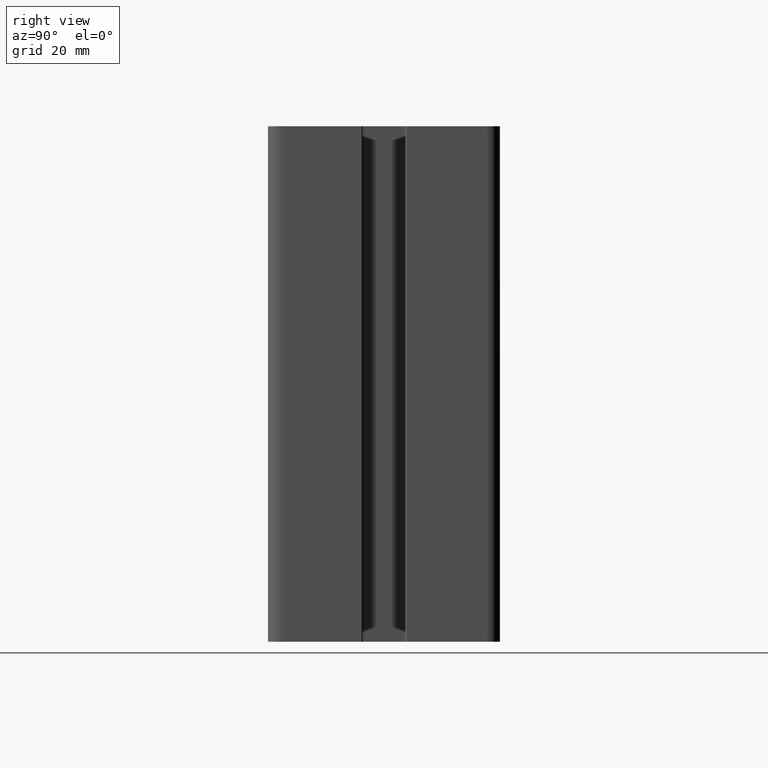
[diagram: clean part render]
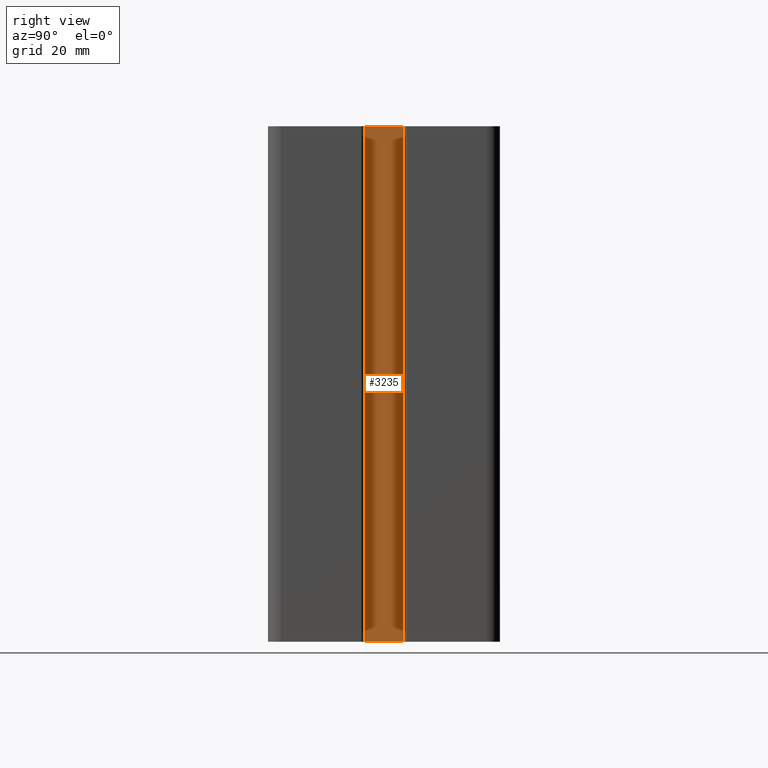
[diagram: same view with one face highlighted and labeled with its STEP entity id]
A machine part, right view. The second image highlights one B-rep face of the part: STEP entity #3235.
In plain terms, the highlighted planar face has unit normal (1, 0, 0).
Its self-contained STEP definition (entity closure, byte-faithful):
#76=PLANE('',#3500);
#209=FACE_OUTER_BOUND('',#377,.T.);
#377=EDGE_LOOP('',(#2443,#2444,#2445,#2446));
#637=LINE('',#5154,#961);
#638=LINE('',#5157,#962);
#639=LINE('',#5159,#963);
#640=LINE('',#5160,#964);
#961=VECTOR('',#4182,100.);
#962=VECTOR('',#4185,7.4);
#963=VECTOR('',#4186,7.4);
#964=VECTOR('',#4187,100.);
#1459=VERTEX_POINT('',#5150);
#1460=VERTEX_POINT('',#5152);
#1461=VERTEX_POINT('',#5156);
#1462=VERTEX_POINT('',#5158);
#1871=EDGE_CURVE('',#1459,#1460,#637,.T.);
#1872=EDGE_CURVE('',#1461,#1459,#638,.T.);
#1873=EDGE_CURVE('',#1462,#1460,#639,.T.);
#1874=EDGE_CURVE('',#1461,#1462,#640,.T.);
#2443=ORIENTED_EDGE('',*,*,#1872,.T.);
#2444=ORIENTED_EDGE('',*,*,#1871,.T.);
#2445=ORIENTED_EDGE('',*,*,#1873,.F.);
#2446=ORIENTED_EDGE('',*,*,#1874,.F.);
#3235=ADVANCED_FACE('',(#209),#76,.T.);
#3500=AXIS2_PLACEMENT_3D('',#5155,#4183,#4184);
#4182=DIRECTION('',(0.,0.,1.));
#4183=DIRECTION('center_axis',(1.,0.,0.));
#4184=DIRECTION('ref_axis',(0.,1.,0.));
#4185=DIRECTION('',(0.,1.,0.));
#4186=DIRECTION('',(0.,1.,0.));
#4187=DIRECTION('',(0.,0.,1.));
#5150=CARTESIAN_POINT('',(29.7,3.7,0.));
#5152=CARTESIAN_POINT('',(29.7,3.7,100.));
#5154=CARTESIAN_POINT('',(29.7,3.7,0.));
#5155=CARTESIAN_POINT('Origin',(29.7,-3.7,0.));
#5156=CARTESIAN_POINT('',(29.7,-3.7,0.));
#5157=CARTESIAN_POINT('',(29.7,-3.7,0.));
#5158=CARTESIAN_POINT('',(29.7,-3.7,100.));
#5159=CARTESIAN_POINT('',(29.7,-3.7,100.));
#5160=CARTESIAN_POINT('',(29.7,-3.7,0.));